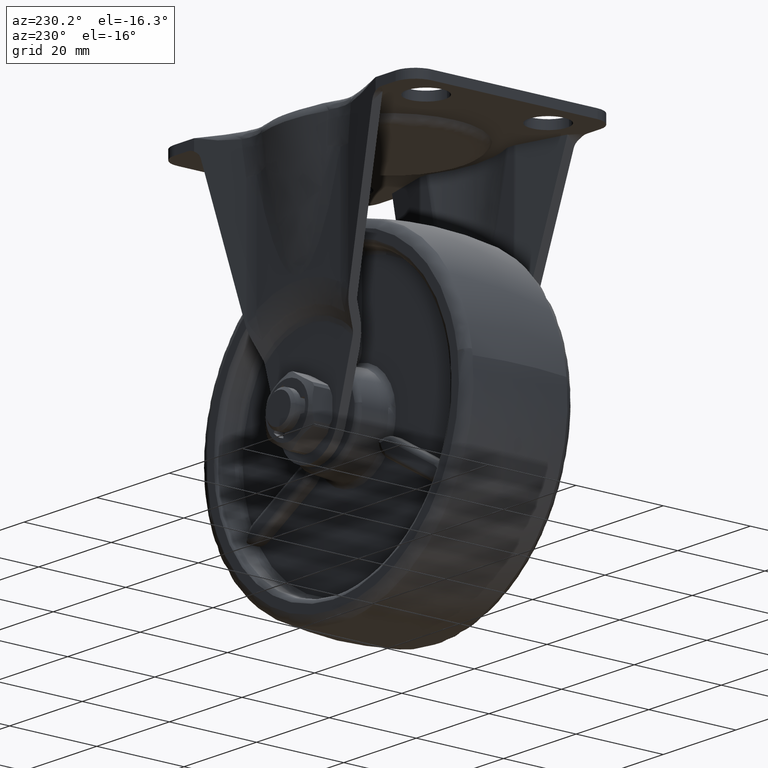
[diagram: clean part render]
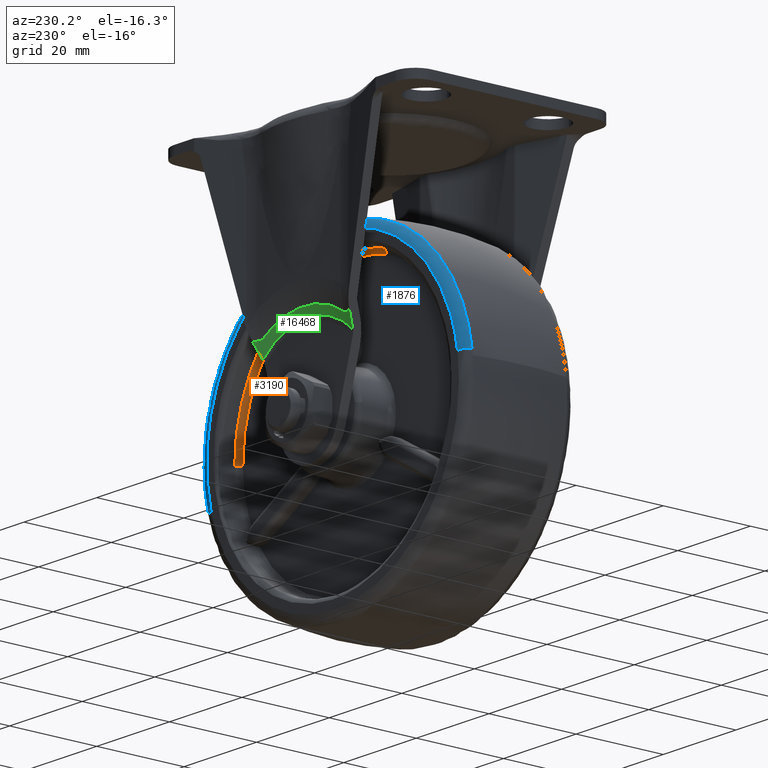
[diagram: same view with three faces highlighted in distinct colors, each labeled with its STEP entity id]
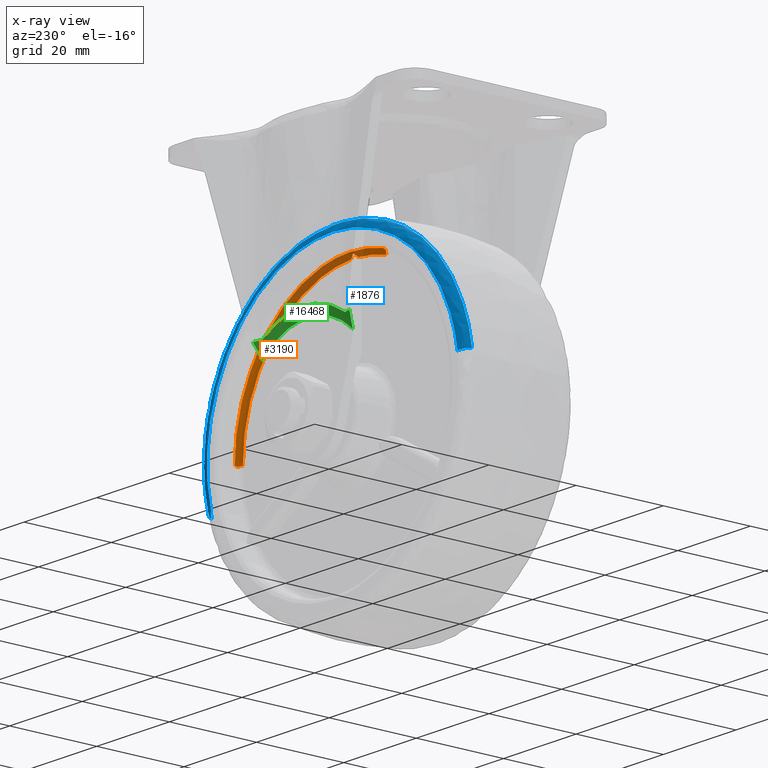
[diagram: x-ray of the same camera — body ghosted, the three highlighted faces saturated]
A machine part, auxiliary view with three faces highlighted in distinct colors.
The next image is the same camera in x-ray (body ghosted, the three faces saturated) — at least one of them is partly hidden behind the body in this view.
Their STEP definitions:

[orange] entity #3190 — the highlighted face is a freeform B-spline surface patch.
#601=CARTESIAN_POINT('',(31.797488205760281,8.499999998173033,-0.399600055726146));
#602=VERTEX_POINT('',#601);
#616=CARTESIAN_POINT('',(23.066904810398029,8.500000000000000,21.889674252213911));
#617=VERTEX_POINT('',#616);
#618=CARTESIAN_POINT('',(31.797488205760285,8.499999998173033,-0.399600055726146));
#619=CARTESIAN_POINT('',(31.799999000000003,8.500000000000000,-0.199807915860401));
#620=CARTESIAN_POINT('',(31.799999000000000,8.500000000000000,1.911231E-015));
#621=CARTESIAN_POINT('',(31.799999000000000,8.500000000000000,12.686912257733182));
#622=CARTESIAN_POINT('',(23.066904810398036,8.500000000000000,21.889674252213904));
#630=(BOUNDED_CURVE()B_SPLINE_CURVE(2,(#618,#619,#620,#621,#622),.UNSPECIFIED.,.F.,.U.)B_SPLINE_CURVE_WITH_KNOTS((3,2,3),(0.247784295921711,0.250000000000000,0.371049519246566),.UNSPECIFIED.)CURVE()GEOMETRIC_REPRESENTATION_ITEM()RATIONAL_B_SPLINE_CURVE((0.994854295643972,0.997404141202287,1.0,0.858181666688209,0.853699661918351))REPRESENTATION_ITEM(''));
#631=EDGE_CURVE('',#602,#617,#630,.T.);
#733=CARTESIAN_POINT('',(0.0,8.500000000000000,31.799999000000000));
#734=VERTEX_POINT('',#733);
#735=CARTESIAN_POINT('',(23.066904810398036,8.500000000000000,21.889674252213904));
#736=CARTESIAN_POINT('',(13.662358705232602,8.500000000000000,31.799999000000000));
#737=CARTESIAN_POINT('',(0.0,8.500000000000000,31.799999000000000));
#745=(BOUNDED_CURVE()B_SPLINE_CURVE(2,(#735,#736,#737),.UNSPECIFIED.,.F.,.U.)B_SPLINE_CURVE_WITH_KNOTS((3,3),(0.371049519246566,0.500000000000000),.UNSPECIFIED.)CURVE()GEOMETRIC_REPRESENTATION_ITEM()RATIONAL_B_SPLINE_CURVE((0.853699661918351,0.848925114498338,1.0))REPRESENTATION_ITEM(''));
#746=EDGE_CURVE('',#617,#734,#745,.T.);
#748=CARTESIAN_POINT('',(-8.960518617686438,8.499999998169447,30.511457561088349));
#749=VERTEX_POINT('',#748);
#750=CARTESIAN_POINT('',(0.0,8.500000000000000,31.799999000000000));
#751=CARTESIAN_POINT('',(-4.572906794476317,8.500000000000000,31.799999000000010));
#752=CARTESIAN_POINT('',(-8.960518617686438,8.499999998169447,30.511457561088353));
#760=(BOUNDED_CURVE()B_SPLINE_CURVE(2,(#750,#751,#752),.UNSPECIFIED.,.F.,.U.)B_SPLINE_CURVE_WITH_KNOTS((3,3),(0.500000000000000,0.547983589719358),.UNSPECIFIED.)CURVE()GEOMETRIC_REPRESENTATION_ITEM()RATIONAL_B_SPLINE_CURVE((1.0,0.943783727827492,0.909147123970804))REPRESENTATION_ITEM(''));
#761=EDGE_CURVE('',#734,#749,#760,.T.);
#2940=CARTESIAN_POINT('',(-8.678741300965047,7.500000000000000,29.551977757311921));
#2941=VERTEX_POINT('',#2940);
#2942=CARTESIAN_POINT('',(-8.960518617686438,8.499999998169447,30.511457561088353));
#2943=CARTESIAN_POINT('',(-8.960518616654769,7.500000049926441,30.511457557575618));
#2944=CARTESIAN_POINT('',(-8.678741300965047,7.500000000000000,29.551977757311928));
#2952=(BOUNDED_CURVE()B_SPLINE_CURVE(2,(#2942,#2943,#2944),.UNSPECIFIED.,.F.,.U.)B_SPLINE_CURVE_WITH_KNOTS((3,3),(-1.725134639527366,-0.274865407917514),.UNSPECIFIED.)CURVE()GEOMETRIC_REPRESENTATION_ITEM()RATIONAL_B_SPLINE_CURVE((0.800550172270887,0.566074465236026,0.800550156929362))REPRESENTATION_ITEM(''));
#2953=EDGE_CURVE('',#749,#2941,#2952,.T.);
#3061=CARTESIAN_POINT('',(30.797567171531242,7.500000000000000,-0.387034015962570));
#3062=VERTEX_POINT('',#3061);
#3076=CARTESIAN_POINT('',(31.797488205760288,8.499999998173033,-0.399600055726146));
#3077=CARTESIAN_POINT('',(31.797488202106649,7.500000019950971,-0.399600055678657));
#3078=CARTESIAN_POINT('',(30.797567171531238,7.500000000000000,-0.387034015962570));
#3086=(BOUNDED_CURVE()B_SPLINE_CURVE(2,(#3076,#3077,#3078),.UNSPECIFIED.,.F.,.U.)B_SPLINE_CURVE_WITH_KNOTS((3,3),(-1.725134639534725,-0.274865377177812),.UNSPECIFIED.)CURVE()GEOMETRIC_REPRESENTATION_ITEM()RATIONAL_B_SPLINE_CURVE((0.883342148316114,0.624617228446007,0.883342142353153))REPRESENTATION_ITEM(''));
#3087=EDGE_CURVE('',#602,#3062,#3086,.T.);
#3094=CARTESIAN_POINT('',(31.795067759535979,8.569537149856529,-0.399569637899117));
#3095=CARTESIAN_POINT('',(32.194637397435095,8.569537149856531,31.395498121636873));
#3096=CARTESIAN_POINT('',(0.399569637899122,8.569537149856529,31.795067759535979));
#3097=CARTESIAN_POINT('',(-4.376720568839375,8.569537149856531,31.855091551994654));
#3098=CARTESIAN_POINT('',(-8.959836536972469,8.569537149856531,30.509135008383122));
#3099=CARTESIAN_POINT('',(31.875019344001405,7.422461828301399,-0.400574392029409));
#3100=CARTESIAN_POINT('',(32.275593736030842,7.422461828301400,31.474444951972007));
#3101=CARTESIAN_POINT('',(0.400574392029415,7.422461828301399,31.875019344001405));
#3102=CARTESIAN_POINT('',(-4.387726230059776,7.422461828301400,31.935194071735594));
#3103=CARTESIAN_POINT('',(-8.982366859382845,7.422461828301401,30.585852998199584));
#3104=CARTESIAN_POINT('',(30.728034658319480,7.502420696166418,-0.386160198639420));
#3105=CARTESIAN_POINT('',(31.114194856958893,7.502420696166418,30.341874459680046));
#3106=CARTESIAN_POINT('',(0.386160198639425,7.502420696166418,30.728034658319480));
#3107=CARTESIAN_POINT('',(-4.229839116752327,7.502420696166419,30.786044069997509));
#3108=CARTESIAN_POINT('',(-8.659147064040887,7.502420696166418,29.485257431218201));
#3116=(BOUNDED_SURFACE()B_SPLINE_SURFACE(2,2,((#3094,#3099,#3104),(#3095,#3100,#3105),(#3096,#3101,#3106),(#3097,#3102,#3107),(#3098,#3103,#3108)),.UNSPECIFIED.,.F.,.F.,.U.)B_SPLINE_SURFACE_WITH_KNOTS((3,2,3),(3,3),(0.0,52.683952833727453,63.220743400472962),(0.0,1.822375031680284),.UNSPECIFIED.)GEOMETRIC_REPRESENTATION_ITEM()RATIONAL_B_SPLINE_SURFACE(((0.910479812032674,0.597479386313794,0.910480162901215),(0.643806449221757,0.422481725681660,0.643806697323281),(0.910479812032674,0.597479386313794,0.910480162901215),(0.857145139470491,0.562479854187367,0.857145469785628),(0.825144335933181,0.541480134911511,0.825144653916276)))REPRESENTATION_ITEM('')SURFACE());
#3117=ORIENTED_EDGE('',*,*,#761,.F.);
#3118=ORIENTED_EDGE('',*,*,#746,.F.);
#3119=ORIENTED_EDGE('',*,*,#631,.F.);
#3120=ORIENTED_EDGE('',*,*,#3087,.T.);
#3121=CARTESIAN_POINT('',(0.998084179100540,7.500000000000000,30.783823127925999));
#3122=VERTEX_POINT('',#3121);
#3123=CARTESIAN_POINT('',(30.797567171531238,7.500000000000000,-0.387034015962570));
#3124=CARTESIAN_POINT('',(30.903883445718748,7.499999999999999,8.072901720828375));
#3125=CARTESIAN_POINT('',(26.673581570535319,7.500000000000000,15.399999499999980));
#3126=CARTESIAN_POINT('',(18.112084827923574,7.500000000000000,30.228946847038983));
#3127=CARTESIAN_POINT('',(0.998084179100544,7.500000000000000,30.783823127925981));
#3135=(BOUNDED_CURVE()B_SPLINE_CURVE(2,(#3123,#3124,#3125,#3126,#3127),.UNSPECIFIED.,.F.,.U.)B_SPLINE_CURVE_WITH_KNOTS((3,2,3),(0.236128176765342,0.500000000000000,1.0),.UNSPECIFIED.)CURVE()GEOMETRIC_REPRESENTATION_ITEM()RATIONAL_B_SPLINE_CURVE((0.937200988207802,0.933511734333800,1.0,0.874014085984708,1.0))REPRESENTATION_ITEM(''));
#3136=EDGE_CURVE('',#3062,#3122,#3135,.T.);
#3137=ORIENTED_EDGE('',*,*,#3136,.T.);
#3138=CARTESIAN_POINT('',(2.220446E-016,7.900001579136170,31.600000184349650));
#3139=VERTEX_POINT('',#3138);
#3140=CARTESIAN_POINT('',(-7.612188E-015,7.900001579136126,31.600000184349671));
#3141=CARTESIAN_POINT('',(0.083427761071620,7.835778787134906,31.551833288427481));
#3142=CARTESIAN_POINT('',(0.168610405168685,7.780895429496793,31.498610693740961));
#3143=CARTESIAN_POINT('',(0.339531290710162,7.684595190133851,31.382019239199710));
#3144=CARTESIAN_POINT('',(0.425341211645501,7.643318787458161,31.318639836440081));
#3145=CARTESIAN_POINT('',(0.553867495332714,7.591622869795318,31.214988851514981));
#3146=CARTESIAN_POINT('',(0.596474986397438,7.576221761220805,31.179157357324719));
#3147=CARTESIAN_POINT('',(0.680158210801130,7.549519663448931,31.105723396595330));
#3148=CARTESIAN_POINT('',(0.721386987675312,7.538155910467121,31.067999078003432));
#3149=CARTESIAN_POINT('',(0.843203019779185,7.510329189723211,30.951713310935869));
#3150=CARTESIAN_POINT('',(0.921917516509391,7.499999999999629,30.870061800764031));
#3151=CARTESIAN_POINT('',(0.998084179100540,7.500000000000000,30.783823127925999));
#3152=B_SPLINE_CURVE_WITH_KNOTS('',3,(#3140,#3141,#3142,#3143,#3144,#3145,#3146,#3147,#3148,#3149,#3150,#3151),.UNSPECIFIED.,.F.,.U.,(4,2,2,2,2,4),(0.0,0.250000000000003,0.500000000000006,0.625000000000006,0.750000000000005,1.0),.UNSPECIFIED.);
#3153=EDGE_CURVE('',#3139,#3122,#3152,.T.);
#3154=ORIENTED_EDGE('',*,*,#3153,.F.);
#3155=CARTESIAN_POINT('',(-0.998084179100540,7.500000000000000,30.783823127925999));
#3156=VERTEX_POINT('',#3155);
#3157=CARTESIAN_POINT('',(-0.998084179100531,7.500000000000001,30.783823127925992));
#3158=CARTESIAN_POINT('',(-0.921703187003136,7.500000000000003,30.870304472446641));
#3159=CARTESIAN_POINT('',(-0.842846732903485,7.510383282695364,30.952076249229481));
#3160=CARTESIAN_POINT('',(-0.720925616590845,7.538275057446027,31.068428000338589));
#3161=CARTESIAN_POINT('',(-0.679679956378365,7.549658695987104,31.106154735476061));
#3162=CARTESIAN_POINT('',(-0.596000930635340,7.576386752334634,31.179561559148709));
#3163=CARTESIAN_POINT('',(-0.553396950606236,7.591804340586116,31.215374894123169));
#3164=CARTESIAN_POINT('',(-0.425407833960850,7.643307654696453,31.318572904253330));
#3165=CARTESIAN_POINT('',(-0.339780618949097,7.684469357332420,31.381839353653291));
#3166=CARTESIAN_POINT('',(-0.211603662065887,7.756664881515031,31.469288286408950));
#3167=CARTESIAN_POINT('',(-0.168928818469781,7.782495964024827,31.497187988823018));
#3168=CARTESIAN_POINT('',(-0.083946875139033,7.838138715916640,31.550526391154190));
#3169=CARTESIAN_POINT('',(-0.041556881825800,7.868011040933536,31.576007379364341));
#3170=CARTESIAN_POINT('',(1.618568E-014,7.900001579136126,31.600000184349678));
#3171=B_SPLINE_CURVE_WITH_KNOTS('',3,(#3157,#3158,#3159,#3160,#3161,#3162,#3163,#3164,#3165,#3166,#3167,#3168,#3169,#3170),.UNSPECIFIED.,.F.,.U.,(4,2,2,2,2,2,4),(0.0,0.249999999999999,0.374999999999999,0.499999999999998,0.750000000000003,0.875000000000002,1.0),.UNSPECIFIED.);
#3172=EDGE_CURVE('',#3156,#3139,#3171,.T.);
#3173=ORIENTED_EDGE('',*,*,#3172,.F.);
#3174=CARTESIAN_POINT('',(-0.998084179100537,7.500000000000000,30.783823127925981));
#3175=CARTESIAN_POINT('',(-4.916818773787167,7.500000000000000,30.656768506256764));
#3176=CARTESIAN_POINT('',(-8.678741300965047,7.500000000000000,29.551977757311924));
#3184=(BOUNDED_CURVE()B_SPLINE_CURVE(2,(#3174,#3175,#3176),.UNSPECIFIED.,.F.,.U.)B_SPLINE_CURVE_WITH_KNOTS((3,3),(0.0,0.126806897265081),.UNSPECIFIED.)CURVE()GEOMETRIC_REPRESENTATION_ITEM()RATIONAL_B_SPLINE_CURVE((1.0,0.968048234289231,0.952303285666156))REPRESENTATION_ITEM(''));
#3185=EDGE_CURVE('',#3156,#2941,#3184,.T.);
#3186=ORIENTED_EDGE('',*,*,#3185,.T.);
#3187=ORIENTED_EDGE('',*,*,#2953,.F.);
#3188=EDGE_LOOP('',(#3117,#3118,#3119,#3120,#3137,#3154,#3173,#3186,#3187));
#3189=FACE_OUTER_BOUND('',#3188,.T.);
#3190=ADVANCED_FACE('',(#3189),#3116,.F.);

[blue] entity #1876 — the highlighted face is a freeform B-spline surface patch.
#1751=CARTESIAN_POINT('',(33.390019281305861,12.495843932021852,-9.115934476540902));
#1752=CARTESIAN_POINT('',(33.918066828192693,12.495843932021849,-7.181791814878467));
#1753=CARTESIAN_POINT('',(34.219258534014806,12.495843932021844,-5.199614828890635));
#1754=CARTESIAN_POINT('',(39.418873362905458,12.495843932021849,29.019643705124178));
#1755=CARTESIAN_POINT('',(5.199614828890638,12.495843932021844,34.219258534014806));
#1756=CARTESIAN_POINT('',(-29.019643705124178,12.495843932021849,39.418873362905458));
#1757=CARTESIAN_POINT('',(-34.219258534014806,12.495843932021844,5.199614828890639));
#1758=CARTESIAN_POINT('',(35.286303915056038,12.622764824052004,-9.633646261146426));
#1759=CARTESIAN_POINT('',(35.844340317014044,12.622764824052005,-7.589659847137180));
#1760=CARTESIAN_POINT('',(36.162637290094366,12.622764824052004,-5.494911145384981));
#1761=CARTESIAN_POINT('',(41.657548435479328,12.622764824052004,30.667726144709366));
#1762=CARTESIAN_POINT('',(5.494911145384982,12.622764824052004,36.162637290094366));
#1763=CARTESIAN_POINT('',(-30.667726144709366,12.622764824052004,41.657548435479328));
#1764=CARTESIAN_POINT('',(-36.162637290094366,12.622764824052004,5.494911145384985));
#1765=CARTESIAN_POINT('',(35.437599647003751,10.659239105340149,-9.674952076737490));
#1766=CARTESIAN_POINT('',(35.998028720239830,10.659239105340143,-7.622201740574673));
#1767=CARTESIAN_POINT('',(36.317690443043873,10.659239105340143,-5.518471465154655));
#1768=CARTESIAN_POINT('',(41.836161908198520,10.659239105340143,30.799218977889225));
#1769=CARTESIAN_POINT('',(5.518471465154659,10.659239105340143,36.317690443043873));
#1770=CARTESIAN_POINT('',(-30.799218977889215,10.659239105340143,41.836161908198520));
#1771=CARTESIAN_POINT('',(-36.317690443043873,10.659239105340143,5.518471465154660));
#1779=(BOUNDED_SURFACE()B_SPLINE_SURFACE(2,2,((#1751,#1758,#1765),(#1752,#1759,#1766),(#1753,#1760,#1767),(#1754,#1761,#1768),(#1755,#1762,#1769),(#1756,#1763,#1770),(#1757,#1764,#1771)),.UNSPECIFIED.,.F.,.F.,.U.)B_SPLINE_SURFACE_WITH_KNOTS((3,2,2,3),(3,3),(0.0,4.869100787169399,65.732918671046789,126.596736554924210),(0.0,3.278088260975563),.UNSPECIFIED.)GEOMETRIC_REPRESENTATION_ITEM()RATIONAL_B_SPLINE_SURFACE(((0.878268635765791,0.624976642756837,0.876129027181348),(0.896333943214532,0.637831929556234,0.894150324534175),(0.917840257699221,0.653135839632669,0.915604246057055),(0.649011070265127,0.461836781240230,0.647429971270140),(0.917840257699221,0.653135839632669,0.915604246057055),(0.649011070265127,0.461836781240230,0.647429971270140),(0.917840257699221,0.653135839632669,0.915604246057055)))REPRESENTATION_ITEM('')SURFACE());
#1780=CARTESIAN_POINT('',(35.423661090667892,10.787670152564511,-9.671150951170290));
#1781=VERTEX_POINT('',#1780);
#1782=CARTESIAN_POINT('',(0.0,10.787666905720769,36.720118509541173));
#1783=VERTEX_POINT('',#1782);
#1784=CARTESIAN_POINT('',(35.423661090667892,10.787670152564511,-9.671150951170290));
#1785=CARTESIAN_POINT('',(36.720116078810250,10.787669787655934,-4.922472251932405));
#1786=CARTESIAN_POINT('',(36.720116078810250,10.787669446989110,0.000001215365460));
#1787=CARTESIAN_POINT('',(36.720116078810257,10.787666905720769,36.720118509541166));
#1788=CARTESIAN_POINT('',(0.0,10.787666905720769,36.720118509541173));
#1796=(BOUNDED_CURVE()B_SPLINE_CURVE(2,(#1784,#1785,#1786,#1787,#1788),.UNSPECIFIED.,.F.,.U.)B_SPLINE_CURVE_WITH_KNOTS((3,2,3),(0.205098069450421,0.250000000000000,0.500000000000000),.UNSPECIFIED.)CURVE()GEOMETRIC_REPRESENTATION_ITEM()RATIONAL_B_SPLINE_CURVE((0.913685078198429,0.947394116121583,1.0,0.707106781186548,1.0))REPRESENTATION_ITEM(''));
#1797=EDGE_CURVE('',#1781,#1783,#1796,.T.);
#1798=ORIENTED_EDGE('',*,*,#1797,.F.);
#1799=CARTESIAN_POINT('',(33.514336538084827,12.500000000000000,-9.149878858244726));
#1800=VERTEX_POINT('',#1799);
#1801=CARTESIAN_POINT('',(33.514336538084834,12.500000000000002,-9.149878858244726));
#1802=CARTESIAN_POINT('',(35.183567359090091,12.499999984186598,-9.605602031339576));
#1803=CARTESIAN_POINT('',(35.423661090667885,10.787670152564511,-9.671150951170290));
#1811=(BOUNDED_CURVE()B_SPLINE_CURVE(2,(#1801,#1802,#1803),.UNSPECIFIED.,.F.,.U.)B_SPLINE_CURVE_WITH_KNOTS((3,3),(-1.715024450484795,-0.291617046969938),.UNSPECIFIED.)CURVE()GEOMETRIC_REPRESENTATION_ITEM()RATIONAL_B_SPLINE_CURVE((0.856303086924858,0.646845103851388,0.854357538544642))REPRESENTATION_ITEM(''));
#1812=EDGE_CURVE('',#1800,#1781,#1811,.T.);
#1813=ORIENTED_EDGE('',*,*,#1812,.F.);
#1814=CARTESIAN_POINT('',(0.0,12.500000000000000,34.740912999999999));
#1815=VERTEX_POINT('',#1814);
#1816=CARTESIAN_POINT('',(33.514336538084827,12.499999999999995,-9.149878858244726));
#1817=CARTESIAN_POINT('',(34.740912999999999,12.500000000000002,-4.657153075997242));
#1818=CARTESIAN_POINT('',(34.740912999999999,12.500000000000000,1.911231E-015));
#1819=CARTESIAN_POINT('',(34.740913000000006,12.500000000000000,34.740913000000006));
#1820=CARTESIAN_POINT('',(0.0,12.500000000000000,34.740912999999999));
#1828=(BOUNDED_CURVE()B_SPLINE_CURVE(2,(#1816,#1817,#1818,#1819,#1820),.UNSPECIFIED.,.F.,.U.)B_SPLINE_CURVE_WITH_KNOTS((3,2,3),(0.205098073247574,0.250000000000000,0.500000000000000),.UNSPECIFIED.)CURVE()GEOMETRIC_REPRESENTATION_ITEM()RATIONAL_B_SPLINE_CURVE((0.913685083899670,0.947394120570224,1.0,0.707106781186548,1.0))REPRESENTATION_ITEM(''));
#1829=EDGE_CURVE('',#1800,#1815,#1828,.T.);
#1830=ORIENTED_EDGE('',*,*,#1829,.T.);
#1831=CARTESIAN_POINT('',(-34.346664253601801,12.500000000000000,5.218974122423510));
#1832=VERTEX_POINT('',#1831);
#1833=CARTESIAN_POINT('',(0.0,12.500000000000000,34.740912999999999));
#1834=CARTESIAN_POINT('',(-29.860806937360163,12.499999999999998,34.740913000000006));
#1835=CARTESIAN_POINT('',(-34.346664253601801,12.500000000000002,5.218974122423510));
#1843=(BOUNDED_CURVE()B_SPLINE_CURVE(2,(#1833,#1834,#1835),.UNSPECIFIED.,.F.,.U.)B_SPLINE_CURVE_WITH_KNOTS((3,3),(0.500000000000000,0.724102415376093),.UNSPECIFIED.)CURVE()GEOMETRIC_REPRESENTATION_ITEM()RATIONAL_B_SPLINE_CURVE((1.0,0.737447688866507,0.945604234433744))REPRESENTATION_ITEM(''));
#1844=EDGE_CURVE('',#1815,#1832,#1843,.T.);
#1845=ORIENTED_EDGE('',*,*,#1844,.T.);
#1846=CARTESIAN_POINT('',(-36.303406947453567,10.787676835451490,5.516301088647926));
#1847=VERTEX_POINT('',#1846);
#1848=CARTESIAN_POINT('',(-34.346664253601801,12.499999999999995,5.218974122423511));
#1849=CARTESIAN_POINT('',(-36.057344683073403,12.499999995850992,5.478911938380112));
#1850=CARTESIAN_POINT('',(-36.303406947453574,10.787676835451489,5.516301088647925));
#1858=(BOUNDED_CURVE()B_SPLINE_CURVE(2,(#1848,#1849,#1850),.UNSPECIFIED.,.F.,.U.)B_SPLINE_CURVE_WITH_KNOTS((3,3),(-1.715024457825945,-0.291620631390871),.UNSPECIFIED.)CURVE()GEOMETRIC_REPRESENTATION_ITEM()RATIONAL_B_SPLINE_CURVE((0.894885057695839,0.675990191456450,0.892850755373249))REPRESENTATION_ITEM(''));
#1859=EDGE_CURVE('',#1832,#1847,#1858,.T.);
#1860=ORIENTED_EDGE('',*,*,#1859,.T.);
#1861=CARTESIAN_POINT('',(0.0,10.787666905720769,36.720118509541173));
#1862=CARTESIAN_POINT('',(-31.561988975046486,10.787671853502896,36.720117388851143));
#1863=CARTESIAN_POINT('',(-36.303406947453567,10.787676835451487,5.516301088647926));
#1871=(BOUNDED_CURVE()B_SPLINE_CURVE(2,(#1861,#1862,#1863),.UNSPECIFIED.,.F.,.U.)B_SPLINE_CURVE_WITH_KNOTS((3,3),(0.500000000000000,0.724102415447969),.UNSPECIFIED.)CURVE()GEOMETRIC_REPRESENTATION_ITEM()RATIONAL_B_SPLINE_CURVE((1.0,0.737447688782299,0.945604234567267))REPRESENTATION_ITEM(''));
#1872=EDGE_CURVE('',#1783,#1847,#1871,.T.);
#1873=ORIENTED_EDGE('',*,*,#1872,.F.);
#1874=EDGE_LOOP('',(#1798,#1813,#1830,#1845,#1860,#1873));
#1875=FACE_OUTER_BOUND('',#1874,.T.);
#1876=ADVANCED_FACE('',(#1875),#1779,.T.);

[green] entity #16468 — the highlighted face is a freeform B-spline surface patch.
#10114=CARTESIAN_POINT('',(12.389599258733121,18.227944556560448,-42.531418051487897));
#10115=VERTEX_POINT('',#10114);
#10144=CARTESIAN_POINT('',(-12.389597908294361,18.227944556559351,-42.531416761342598));
#10145=VERTEX_POINT('',#10144);
#10157=CARTESIAN_POINT('',(12.389599258733121,18.227944556560448,-42.531418051487897));
#10158=CARTESIAN_POINT('',(0.000001291492691,18.227944556559354,-30.694954018618301));
#10159=CARTESIAN_POINT('',(-12.389597908294361,18.227944556559351,-42.531416761342598));
#10167=(BOUNDED_CURVE()B_SPLINE_CURVE(2,(#10157,#10158,#10159),.UNSPECIFIED.,.F.,.U.)CURVE()GEOMETRIC_REPRESENTATION_ITEM()QUASI_UNIFORM_CURVE()RATIONAL_B_SPLINE_CURVE((1.0,0.723063165153326,1.0))REPRESENTATION_ITEM(''));
#10168=EDGE_CURVE('',#10115,#10145,#10167,.T.);
#14841=CARTESIAN_POINT('',(-11.419787052981940,19.214994950568951,-39.298235816399298));
#14842=VERTEX_POINT('',#14841);
#15186=CARTESIAN_POINT('',(11.419686347294560,19.214994950568951,-39.298164834628302));
#15187=VERTEX_POINT('',#15186);
#15437=CARTESIAN_POINT('',(13.301520209601840,19.773581175910600,-39.392945223498401));
#15438=VERTEX_POINT('',#15437);
#15439=CARTESIAN_POINT('',(11.419686347294560,19.214994950568951,-39.298164834628302));
#15440=CARTESIAN_POINT('',(12.047910279001790,19.402695179919242,-39.302107588941482));
#15441=CARTESIAN_POINT('',(12.675210380355400,19.588827561621979,-39.333632772204247));
#15442=CARTESIAN_POINT('',(13.301520209601840,19.773581175910600,-39.392945223498351));
#15443=QUASI_UNIFORM_CURVE('',3,(#15439,#15440,#15441,#15442),.UNSPECIFIED.,.F.,.U.);
#15444=EDGE_CURVE('',#15187,#15438,#15443,.T.);
#15510=CARTESIAN_POINT('',(-11.419787052981951,19.214994950568951,-39.298235816399277));
#15511=CARTESIAN_POINT('',(-0.000075368371337,19.214994950568951,-31.249070665810098));
#15512=CARTESIAN_POINT('',(11.419686347294560,19.214994950568951,-39.298164834628288));
#15520=(BOUNDED_CURVE()B_SPLINE_CURVE(2,(#15510,#15511,#15512),.UNSPECIFIED.,.F.,.U.)CURVE()GEOMETRIC_REPRESENTATION_ITEM()QUASI_UNIFORM_CURVE()RATIONAL_B_SPLINE_CURVE((1.0,0.817367632860142,1.0))REPRESENTATION_ITEM(''));
#15521=EDGE_CURVE('',#14842,#15187,#15520,.T.);
#15570=CARTESIAN_POINT('',(-13.301497839317619,19.773545206034800,-39.393015899990147));
#15571=VERTEX_POINT('',#15570);
#15572=CARTESIAN_POINT('',(-13.301497839317619,19.773545206034800,-39.393015899990147));
#15573=CARTESIAN_POINT('',(-12.675228991685870,19.588803422164609,-39.333707073588769));
#15574=CARTESIAN_POINT('',(-12.047969919454300,19.402683018463389,-39.302181982401777));
#15575=CARTESIAN_POINT('',(-11.419787052981940,19.214994950568951,-39.298235816399298));
#15576=QUASI_UNIFORM_CURVE('',3,(#15572,#15573,#15574,#15575),.UNSPECIFIED.,.F.,.U.);
#15577=EDGE_CURVE('',#15571,#14842,#15576,.T.);
#16434=CARTESIAN_POINT('',(12.837711682609520,18.189303641075568,-43.080821743390942));
#16435=CARTESIAN_POINT('',(15.068158703565580,19.813188114281470,-40.923091469490181));
#16436=CARTESIAN_POINT('',(-0.249371536526586,18.189303641075576,-29.552696318169822));
#16437=CARTESIAN_POINT('',(-0.292697793924186,19.813188114281470,-25.044565303093417));
#16438=CARTESIAN_POINT('',(-13.074032121312211,18.189303641075568,-43.329851524893520));
#16439=CARTESIAN_POINT('',(-15.345537878554550,19.813188114281470,-41.215388131260383));
#16447=(BOUNDED_SURFACE()B_SPLINE_SURFACE(1,2,((#16434,#16436,#16438),(#16435,#16437,#16439)),.UNSPECIFIED.,.F.,.F.,.U.)B_SPLINE_SURFACE_WITH_KNOTS((2,2),(3,3),(0.0,3.502526892190677),(0.0,36.029281495852757),.UNSPECIFIED.)GEOMETRIC_REPRESENTATION_ITEM()RATIONAL_B_SPLINE_SURFACE(((1.0,0.688354575693754,1.0),(1.0,0.688354575693754,1.0)))REPRESENTATION_ITEM('')SURFACE());
#16448=CARTESIAN_POINT('',(12.389599258733130,18.227944556560470,-42.531418051487911));
#16449=CARTESIAN_POINT('',(12.694538926960350,18.735249523376499,-41.481935788803213));
#16450=CARTESIAN_POINT('',(12.998371110361530,19.251619692368600,-40.436265052798142));
#16451=CARTESIAN_POINT('',(13.301520209601840,19.773581175910572,-39.392945223498387));
#16452=QUASI_UNIFORM_CURVE('',3,(#16448,#16449,#16450,#16451),.UNSPECIFIED.,.F.,.U.);
#16453=EDGE_CURVE('',#10115,#15438,#16452,.T.);
#16454=ORIENTED_EDGE('',*,*,#16453,.F.);
#16455=ORIENTED_EDGE('',*,*,#10168,.T.);
#16456=CARTESIAN_POINT('',(-13.301497839317619,19.773545206034800,-39.393015899990147));
#16457=CARTESIAN_POINT('',(-12.998406122366809,19.251682772173410,-40.436138366815889));
#16458=CARTESIAN_POINT('',(-12.694589955243821,18.735336736874590,-41.481754106167507));
#16459=CARTESIAN_POINT('',(-12.389597908294350,18.227944556559351,-42.531416761342598));
#16460=QUASI_UNIFORM_CURVE('',3,(#16456,#16457,#16458,#16459),.UNSPECIFIED.,.F.,.U.);
#16461=EDGE_CURVE('',#15571,#10145,#16460,.T.);
#16462=ORIENTED_EDGE('',*,*,#16461,.F.);
#16463=ORIENTED_EDGE('',*,*,#15577,.T.);
#16464=ORIENTED_EDGE('',*,*,#15521,.T.);
#16465=ORIENTED_EDGE('',*,*,#15444,.T.);
#16466=EDGE_LOOP('',(#16454,#16455,#16462,#16463,#16464,#16465));
#16467=FACE_OUTER_BOUND('',#16466,.T.);
#16468=ADVANCED_FACE('',(#16467),#16447,.F.);